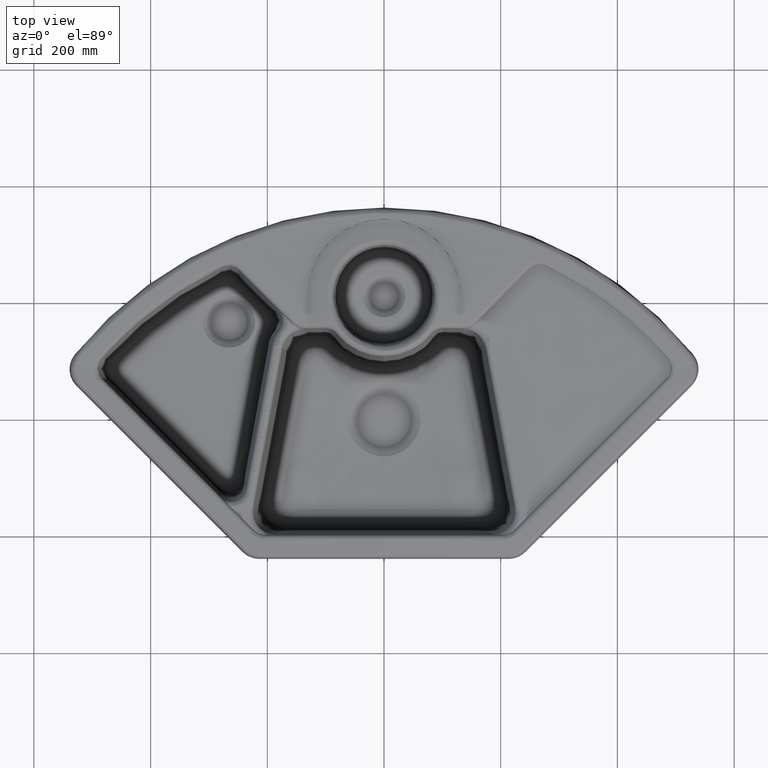
[diagram: clean part render]
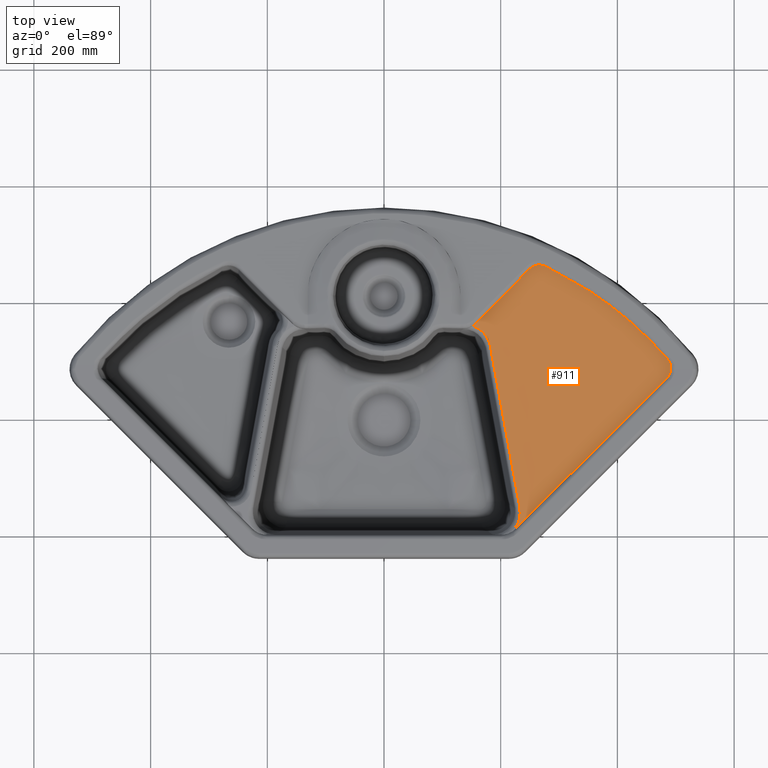
[diagram: same view with one face highlighted and labeled with its STEP entity id]
A machine part, top view. The second image highlights one B-rep face of the part: STEP entity #911.
In plain terms, the highlighted face is a freeform B-spline surface patch.
Its self-contained STEP definition (entity closure, byte-faithful):
#172=B_SPLINE_SURFACE_WITH_KNOTS('',3,1,((#20455,#20456),(#20457,#20458),
(#20459,#20460),(#20461,#20462),(#20463,#20464),(#20465,#20466),(#20467,
#20468),(#20469,#20470),(#20471,#20472),(#20473,#20474),(#20475,#20476),
(#20477,#20478),(#20479,#20480),(#20481,#20482),(#20483,#20484),(#20485,
#20486),(#20487,#20488),(#20489,#20490),(#20491,#20492)),.UNSPECIFIED.,.F.,
 .F.,.F.,(4,1,1,1,1,1,1,1,1,1,1,1,1,1,1,1,4),(2,2),(0.,0.0843379657449076,
0.111162563651349,0.137987161557791,0.164811759464233,0.191636357370675,
0.198342506847285,0.205048656323895,0.218460955277116,0.27211015109,0.379408542715767,
0.486706934341534,0.594005325967301,0.701303717593068,0.808602109218835,
0.862251305031718,1.),(0.,1.),.UNSPECIFIED.);
#911=ADVANCED_FACE('',(#1480),#172,.F.);
#1480=FACE_OUTER_BOUND('',#2008,.T.);
#2008=EDGE_LOOP('',(#3188,#3189,#3190,#3191,#3192,#3193,#3194,#3195,#3196,
#3197,#3198,#3199,#3200,#3201));
#3188=ORIENTED_EDGE('',*,*,#6421,.T.);
#3189=ORIENTED_EDGE('',*,*,#6422,.T.);
#3190=ORIENTED_EDGE('',*,*,#6423,.T.);
#3191=ORIENTED_EDGE('',*,*,#6424,.F.);
#3192=ORIENTED_EDGE('',*,*,#6425,.T.);
#3193=ORIENTED_EDGE('',*,*,#6346,.F.);
#3194=ORIENTED_EDGE('',*,*,#6351,.F.);
#3195=ORIENTED_EDGE('',*,*,#6354,.F.);
#3196=ORIENTED_EDGE('',*,*,#6357,.F.);
#3197=ORIENTED_EDGE('',*,*,#6359,.F.);
#3198=ORIENTED_EDGE('',*,*,#6361,.F.);
#3199=ORIENTED_EDGE('',*,*,#6363,.F.);
#3200=ORIENTED_EDGE('',*,*,#6426,.T.);
#3201=ORIENTED_EDGE('',*,*,#6427,.T.);
#5298=VERTEX_POINT('',#19165);
#5299=VERTEX_POINT('',#19170);
#5303=VERTEX_POINT('',#19199);
#5304=VERTEX_POINT('',#19234);
#5305=VERTEX_POINT('',#19262);
#5306=VERTEX_POINT('',#19283);
#5307=VERTEX_POINT('',#19336);
#5308=VERTEX_POINT('',#19385);
#5343=VERTEX_POINT('',#20409);
#5344=VERTEX_POINT('',#20410);
#5345=VERTEX_POINT('',#20429);
#5346=VERTEX_POINT('',#20436);
#5347=VERTEX_POINT('',#20441);
#5348=VERTEX_POINT('',#20450);
#6346=EDGE_CURVE('',#5298,#5299,#7765,.T.);
#6351=EDGE_CURVE('',#5303,#5298,#7769,.T.);
#6354=EDGE_CURVE('',#5304,#5303,#7772,.T.);
#6357=EDGE_CURVE('',#5305,#5304,#7774,.T.);
#6359=EDGE_CURVE('',#5306,#5305,#7776,.T.);
#6361=EDGE_CURVE('',#5307,#5306,#7778,.T.);
#6363=EDGE_CURVE('',#5308,#5307,#7780,.T.);
#6421=EDGE_CURVE('',#5343,#5344,#7834,.T.);
#6422=EDGE_CURVE('',#5344,#5345,#7835,.T.);
#6423=EDGE_CURVE('',#5345,#5346,#7836,.T.);
#6424=EDGE_CURVE('',#5347,#5346,#7837,.T.);
#6425=EDGE_CURVE('',#5347,#5299,#7838,.T.);
#6426=EDGE_CURVE('',#5308,#5348,#7839,.T.);
#6427=EDGE_CURVE('',#5348,#5343,#7840,.T.);
#7765=B_SPLINE_CURVE_WITH_KNOTS('',3,(#19166,#19167,#19168,#19169),.UNSPECIFIED.,
 .F.,.F.,(4,4),(0.,1.),.UNSPECIFIED.);
#7769=B_SPLINE_CURVE_WITH_KNOTS('',3,(#19200,#19201,#19202,#19203,#19204,
#19205),.UNSPECIFIED.,.F.,.F.,(4,2,4),(0.,0.5,1.),.UNSPECIFIED.);
#7772=B_SPLINE_CURVE_WITH_KNOTS('',3,(#19235,#19236,#19237,#19238),.UNSPECIFIED.,
 .F.,.F.,(4,4),(0.,1.),.UNSPECIFIED.);
#7774=B_SPLINE_CURVE_WITH_KNOTS('',3,(#19263,#19264,#19265,#19266),.UNSPECIFIED.,
 .F.,.F.,(4,4),(0.,1.),.UNSPECIFIED.);
#7776=B_SPLINE_CURVE_WITH_KNOTS('',3,(#19284,#19285,#19286,#19287,#19288,
#19289,#19290,#19291,#19292,#19293),.UNSPECIFIED.,.F.,.F.,(4,2,2,2,4),(0.,
0.25,0.5,0.75,1.),.UNSPECIFIED.);
#7778=B_SPLINE_CURVE_WITH_KNOTS('',3,(#19337,#19338,#19339,#19340,#19341,
#19342,#19343,#19344),.UNSPECIFIED.,.F.,.F.,(4,2,2,4),(0.,0.5,0.75,1.),.UNSPECIFIED.);
#7780=B_SPLINE_CURVE_WITH_KNOTS('',3,(#19387,#19388,#19389,#19390),.UNSPECIFIED.,
 .F.,.F.,(4,4),(0.,1.),.UNSPECIFIED.);
#7834=B_SPLINE_CURVE_WITH_KNOTS('',3,(#20371,#20372,#20373,#20374,#20375,
#20376,#20377,#20378,#20379,#20380,#20381,#20382,#20383,#20384,#20385,#20386,
#20387,#20388,#20389,#20390,#20391,#20392,#20393,#20394,#20395,#20396,#20397,
#20398,#20399,#20400,#20401,#20402,#20403,#20404,#20405,#20406,#20407,#20408),
 .UNSPECIFIED.,.F.,.F.,(4,2,2,2,2,2,2,2,2,2,2,2,2,2,2,2,1,1,2,4),(0.,0.249999999999984,
0.499999999999969,0.531249999999967,0.562499999999965,0.624999999999959,
0.749999999999946,0.781249999999943,0.812499999999939,0.87499999999993,0.878906249999931,
0.882812499999931,0.890624999999932,0.906249999999936,0.937499999999944,
0.941406249999948,0.945312499999952,0.953124999999959,0.968749999999973,
1.),.UNSPECIFIED.);
#7835=B_SPLINE_CURVE_WITH_KNOTS('',3,(#20411,#20412,#20413,#20414,#20415,
#20416,#20417,#20418,#20419,#20420,#20421,#20422,#20423,#20424,#20425,#20426,
#20427,#20428),.UNSPECIFIED.,.F.,.F.,(4,2,2,1,1,1,1,1,1,2,2,4),(0.,0.500000000000004,
0.500976562500004,0.501953125000004,0.503906250000004,0.507812500000004,
0.515625000000004,0.531250000000004,0.562500000000003,0.625000000000003,
0.750000000000002,1.),.UNSPECIFIED.);
#7836=B_SPLINE_CURVE_WITH_KNOTS('',3,(#20430,#20431,#20432,#20433,#20434,
#20435),.UNSPECIFIED.,.F.,.F.,(4,2,4),(0.,0.5,1.),.UNSPECIFIED.);
#7837=B_SPLINE_CURVE_WITH_KNOTS('',3,(#20437,#20438,#20439,#20440),.UNSPECIFIED.,
 .F.,.F.,(4,4),(0.,1.),.UNSPECIFIED.);
#7838=B_SPLINE_CURVE_WITH_KNOTS('',3,(#20442,#20443,#20444,#20445),.UNSPECIFIED.,
 .F.,.F.,(4,4),(0.,1.),.UNSPECIFIED.);
#7839=B_SPLINE_CURVE_WITH_KNOTS('',3,(#20446,#20447,#20448,#20449),.UNSPECIFIED.,
 .F.,.F.,(4,4),(0.,1.),.UNSPECIFIED.);
#7840=B_SPLINE_CURVE_WITH_KNOTS('',3,(#20451,#20452,#20453,#20454),.UNSPECIFIED.,
 .F.,.F.,(4,4),(0.,1.),.UNSPECIFIED.);
#19165=CARTESIAN_POINT('',(483.662048496928,67.1770182385258,-3.70768719974759));
#19166=CARTESIAN_POINT('',(483.662048251032,67.1770179949964,-3.7076872028559));
#19167=CARTESIAN_POINT('',(435.300203226861,19.3664167319738,-4.43169919002742));
#19168=CARTESIAN_POINT('',(369.418566424794,-45.9617528513518,-5.41742687280972));
#19169=CARTESIAN_POINT('',(286.202354894144,-128.992707804294,-6.66377229385875));
#19170=CARTESIAN_POINT('',(286.202328654955,-128.992733984084,-6.66377268684668));
#19199=CARTESIAN_POINT('',(491.296560264635,84.3516708903846,-3.55903628591284));
#19200=CARTESIAN_POINT('',(491.296560269948,84.3516710091879,-3.55903628506826));
#19201=CARTESIAN_POINT('',(491.185657935975,81.8722524667714,-3.57666249327834));
#19202=CARTESIAN_POINT('',(490.700654761542,79.0246534340738,-3.59210786070263));
#19203=CARTESIAN_POINT('',(488.349005447191,73.0701571823819,-3.63649179862702));
#19204=CARTESIAN_POINT('',(486.483007299668,69.9658228531575,-3.66545539731469));
#19205=CARTESIAN_POINT('',(483.662048605296,67.1770183478396,-3.70768720098986));
#19234=CARTESIAN_POINT('',(486.659033673246,100.195195820494,-3.38037267553406));
#19235=CARTESIAN_POINT('',(486.659033497846,100.19519606935,-3.38037267153924));
#19236=CARTESIAN_POINT('',(489.857363659618,95.6568040536952,-3.4538818597989));
#19237=CARTESIAN_POINT('',(491.553874234293,89.971745869247,-3.50861135175512));
#19238=CARTESIAN_POINT('',(491.296560269948,84.3516710091879,-3.55903628506819));
#19262=CARTESIAN_POINT('',(484.939035133482,102.38287331697,-3.33972800117536));
#19263=CARTESIAN_POINT('',(484.938277660277,102.383738328688,-3.33971092099491));
#19264=CARTESIAN_POINT('',(485.54779236654,101.689464697775,-3.35140956101758));
#19265=CARTESIAN_POINT('',(486.121889084399,100.96038142238,-3.36493435612506));
#19266=CARTESIAN_POINT('',(486.659033273958,100.195196391039,-3.38037266225425));
#19283=CARTESIAN_POINT('',(277.452421799216,259.912549006074,0.365415146927722));
#19284=CARTESIAN_POINT('',(277.452422170822,259.91254882932,0.365415143980697));
#19285=CARTESIAN_POINT('',(297.158976049308,250.499419582075,0.144182684609964));
#19286=CARTESIAN_POINT('',(316.442202518618,240.049300963035,-0.101474032406003));
#19287=CARTESIAN_POINT('',(353.787492787295,217.279498375949,-0.636857511165677));
#19288=CARTESIAN_POINT('',(371.829290945504,204.980586399292,-0.926094856416836));
#19289=CARTESIAN_POINT('',(406.644478101589,178.549317276527,-1.54779292901841));
#19290=CARTESIAN_POINT('',(423.424191857759,164.401035824222,-1.88060329313069));
#19291=CARTESIAN_POINT('',(455.342178042167,134.58803315594,-2.58197016570639));
#19292=CARTESIAN_POINT('',(470.531188712614,118.887946888145,-2.95136040094477));
#19293=CARTESIAN_POINT('',(484.938277660277,102.383738328688,-3.33971092099456));
#19336=CARTESIAN_POINT('',(248.216309421765,254.642100971528,-0.289517142007422));
#19337=CARTESIAN_POINT('',(248.216309655965,254.642101214866,-0.289517123771459));
#19338=CARTESIAN_POINT('',(251.843396984405,258.38579978795,-0.0452346938478349));
#19339=CARTESIAN_POINT('',(256.709744151018,261.039407097857,0.147153241332134));
#19340=CARTESIAN_POINT('',(264.591172719788,262.469099275857,0.322359458709459));
#19341=CARTESIAN_POINT('',(267.323163594245,262.52373719484,0.35919038420258));
#19342=CARTESIAN_POINT('',(272.594018876701,261.794242004421,0.390032881038333));
#19343=CARTESIAN_POINT('',(275.090883636015,261.037114677199,0.386275416012494));
#19344=CARTESIAN_POINT('',(277.452421723442,259.912549038521,0.365415141654631));
#19385=CARTESIAN_POINT('',(194.503984916505,199.749101080786,-4.09684412342709));
#19387=CARTESIAN_POINT('',(194.500638262231,199.745741964564,-4.09692269826592));
#19388=CARTESIAN_POINT('',(219.424086797346,224.938991676234,-2.28178897672244));
#19389=CARTESIAN_POINT('',(237.247020595193,243.320148058976,-1.0282930226046));
#19390=CARTESIAN_POINT('',(248.216309372731,254.642100912411,-0.289517158332691));
#20371=CARTESIAN_POINT('',(152.646613315489,158.347880492797,-7.06599557758316));
#20372=CARTESIAN_POINT('',(155.850168126786,157.172975075239,-7.09263997476081));
#20373=CARTESIAN_POINT('',(159.258872526131,155.505854524895,-7.11373380729172));
#20374=CARTESIAN_POINT('',(165.990288669051,150.945737892863,-7.14514355623084));
#20375=CARTESIAN_POINT('',(169.310413184655,148.046743867806,-7.15545906672863));
#20376=CARTESIAN_POINT('',(172.618091204554,144.090188621267,-7.16124417167934));
#20377=CARTESIAN_POINT('',(172.909004663506,143.728547471728,-7.16169677534952));
#20378=CARTESIAN_POINT('',(173.544406645892,142.914571916571,-7.16258439215552));
#20379=CARTESIAN_POINT('',(173.854418327275,142.503476253037,-7.16295909702881));
#20380=CARTESIAN_POINT('',(174.761128250544,141.259226209595,-7.16387698623168));
#20381=CARTESIAN_POINT('',(175.334491913668,140.415119039285,-7.16421394674444));
#20382=CARTESIAN_POINT('',(176.959538948505,137.849494070324,-7.16440855776897));
#20383=CARTESIAN_POINT('',(177.916012157853,136.094480039023,-7.16344996734843));
#20384=CARTESIAN_POINT('',(178.949642511235,133.879953287816,-7.16091965977806));
#20385=CARTESIAN_POINT('',(179.190308199878,133.341836381967,-7.16022015156167));
#20386=CARTESIAN_POINT('',(179.602111907473,132.373959527629,-7.15877440870202));
#20387=CARTESIAN_POINT('',(179.796349759941,131.894712487186,-7.15797165101804));
#20388=CARTESIAN_POINT('',(180.34609340243,130.473210304616,-7.15532476107273));
#20389=CARTESIAN_POINT('',(180.668566347377,129.547257641598,-7.15324203548411));
#20390=CARTESIAN_POINT('',(180.970507210749,128.591699704318,-7.1506937801584));
#20391=CARTESIAN_POINT('',(181.011898742052,128.45929089688,-7.15034205447702));
#20392=CARTESIAN_POINT('',(181.06819660518,128.276059793653,-7.14985916579415));
#20393=CARTESIAN_POINT('',(181.095328261286,128.186560749466,-7.14962479704191));
#20394=CARTESIAN_POINT('',(181.173926955321,127.924466841535,-7.14894286413232));
#20395=CARTESIAN_POINT('',(181.222609988497,127.75827787679,-7.14851647240155));
#20396=CARTESIAN_POINT('',(181.359064357747,127.28565431121,-7.14732159349401));
#20397=CARTESIAN_POINT('',(181.437368770647,127.00519059005,-7.14663738771055));
#20398=CARTESIAN_POINT('',(181.640732606948,126.268935543463,-7.14491928889692));
#20399=CARTESIAN_POINT('',(181.734661786679,125.918359387571,-7.14421967241238));
#20400=CARTESIAN_POINT('',(181.794203735437,125.681641191127,-7.14392948257878));
#20401=CARTESIAN_POINT('',(181.817904588784,125.586890963664,-7.14381936666745));
#20402=CARTESIAN_POINT('',(181.848116464684,125.464713044334,-7.14369334400553));
#20403=CARTESIAN_POINT('',(181.893106906004,125.281202276804,-7.14352172188015));
#20404=CARTESIAN_POINT('',(181.99577705671,124.851293680233,-7.1432430656105));
#20405=CARTESIAN_POINT('',(182.079769701051,124.479824684736,-7.14321270862497));
#20406=CARTESIAN_POINT('',(182.242263317994,123.7328317867,-7.14342918031997));
#20407=CARTESIAN_POINT('',(182.343229428298,123.22941662462,-7.14394307585986));
#20408=CARTESIAN_POINT('',(182.436720039217,122.720439349694,-7.14482440969672));
#20409=CARTESIAN_POINT('',(152.646730221251,158.347800929668,-7.0672564141475));
#20410=CARTESIAN_POINT('',(182.436878745634,122.71957523877,-7.1448259066597));
#20411=CARTESIAN_POINT('',(182.437037452051,122.718711127846,-7.14482740362267));
#20412=CARTESIAN_POINT('',(188.929870817375,87.3609003397661,-7.20612885590279));
#20413=CARTESIAN_POINT('',(197.321456733956,41.5302826148112,-7.25903026215568));
#20414=CARTESIAN_POINT('',(207.626147774808,-14.8849339234214,-7.30406991582157));
#20415=CARTESIAN_POINT('',(207.633386797801,-14.9245653739396,-7.30410152689365));
#20416=CARTESIAN_POINT('',(207.660728746403,-15.074254210359,-7.30422091609888));
#20417=CARTESIAN_POINT('',(207.701757487547,-15.2988737237552,-7.30439998148654));
#20418=CARTESIAN_POINT('',(207.797601937008,-15.8235897394068,-7.30481767175599));
#20419=CARTESIAN_POINT('',(207.989733656242,-16.8754370921856,-7.30565253620586));
#20420=CARTESIAN_POINT('',(208.375767897116,-18.9887934836416,-7.30732019906234));
#20421=CARTESIAN_POINT('',(209.154915783486,-23.2541561588407,-7.31064726596261));
#20422=CARTESIAN_POINT('',(210.741499821387,-31.9395046484548,-7.317268006079));
#20423=CARTESIAN_POINT('',(212.149822543916,-39.6492369419559,-7.322887093235));
#20424=CARTESIAN_POINT('',(215.030750459762,-55.4223992306381,-7.33405706319391));
#20425=CARTESIAN_POINT('',(217.037065255889,-66.4094591113809,-7.34142044520523));
#20426=CARTESIAN_POINT('',(223.311553723147,-100.786173397485,-7.36324118478742));
#20427=CARTESIAN_POINT('',(227.834978198763,-125.591686232308,-7.37969144158248));
#20428=CARTESIAN_POINT('',(232.697339632986,-152.282917934206,-7.39064548886077));
#20429=CARTESIAN_POINT('',(232.697339680403,-152.282918194496,-7.39064548897116));
#20430=CARTESIAN_POINT('',(232.697339692255,-152.282918259568,-7.39064548899432));
#20431=CARTESIAN_POINT('',(234.073507593614,-159.837755521475,-7.39374731153565));
#20432=CARTESIAN_POINT('',(233.622009420506,-167.652407993756,-7.41921256744061));
#20433=CARTESIAN_POINT('',(229.063146781433,-182.355439485451,-7.51139294859209));
#20434=CARTESIAN_POINT('',(225.046347512855,-189.005565557793,-7.57744710528305));
#20435=CARTESIAN_POINT('',(219.623087720578,-194.428974541808,-7.65868402399018));
#20436=CARTESIAN_POINT('',(219.633816211724,-194.421949417344,-7.6588481142045));
#20437=CARTESIAN_POINT('',(225.050681525599,-190.008232466659,-7.57973608111142));
#20438=CARTESIAN_POINT('',(223.40522005856,-191.650030120759,-7.60438501145616));
#20439=CARTESIAN_POINT('',(221.59175790275,-193.129346848583,-7.63183763765395));
#20440=CARTESIAN_POINT('',(219.644355874837,-194.414694753519,-7.66026730649162));
#20441=CARTESIAN_POINT('',(225.05067838313,-190.008229238976,-7.57973662454442));
#20442=CARTESIAN_POINT('',(225.05067465723,-190.008225479905,-7.57973615155395));
#20443=CARTESIAN_POINT('',(245.438596528402,-169.664935513478,-7.27432431381908));
#20444=CARTESIAN_POINT('',(265.822473340566,-149.326446303332,-6.96900426841608));
#20445=CARTESIAN_POINT('',(286.20230294425,-128.992759636566,-6.66377307191866));
#20446=CARTESIAN_POINT('',(194.500635726167,199.745745727405,-4.09692245051636));
#20447=CARTESIAN_POINT('',(181.178228864754,186.279871883363,-5.06712010661236));
#20448=CARTESIAN_POINT('',(168.937697439761,173.906627935611,-5.95929303768468));
#20449=CARTESIAN_POINT('',(157.401635416988,162.247903986749,-6.78019668743094));
#20450=CARTESIAN_POINT('',(157.401630509742,162.247907366684,-6.78010399235591));
#20451=CARTESIAN_POINT('',(157.401638158341,162.2479004326,-6.78019685923208));
#20452=CARTESIAN_POINT('',(155.960572502232,160.791593067318,-6.8827380736502));
#20453=CARTESIAN_POINT('',(154.388722911108,159.497651506204,-6.97738795692975));
#20454=CARTESIAN_POINT('',(152.646632643751,158.347849795889,-7.06599709907558));
#20455=CARTESIAN_POINT('',(261.865038912648,267.553017322649,0.554520693397684));
#20456=CARTESIAN_POINT('',(108.742529165494,141.395107192456,-7.86485855725926));
#20457=CARTESIAN_POINT('',(269.717730618314,264.001722143275,0.472417584653484));
#20458=CARTESIAN_POINT('',(117.945189419928,148.338026758576,-7.86113940090682));
#20459=CARTESIAN_POINT('',(279.952532108939,259.150644796499,0.35928062702718));
#20460=CARTESIAN_POINT('',(133.75449775675,150.769606303047,-7.85601445446947));
#20461=CARTESIAN_POINT('',(292.507766671792,252.853212665933,0.210974489889075));
#20462=CARTESIAN_POINT('',(150.590243221533,143.624360545897,-7.84929639323544));
#20463=CARTESIAN_POINT('',(299.791196459214,249.101817431976,0.122284372739326));
#20464=CARTESIAN_POINT('',(158.881977729915,136.90366557609,-7.84527885458625));
#20465=CARTESIAN_POINT('',(307.038515395626,245.269389359071,0.0314122004442158));
#20466=CARTESIAN_POINT('',(165.01082340425,128.129149914178,-7.84116247188135));
#20467=CARTESIAN_POINT('',(312.448043537341,242.331886222598,-0.0383662709550859));
#20468=CARTESIAN_POINT('',(167.65248940592,120.498986893071,-7.83800160441676));
#20469=CARTESIAN_POINT('',(316.044037946746,240.346064483151,-0.0855569781366687));
#20470=CARTESIAN_POINT('',(168.461722205308,115.20601468062,-7.83586393117788));
#20471=CARTESIAN_POINT('',(318.437020618103,239.014520746549,-0.117196237724574));
#20472=CARTESIAN_POINT('',(169.009090358151,111.680624597414,-7.83443071683212));
#20473=CARTESIAN_POINT('',(324.999959037223,235.321317409396,-0.204940304819244));
#20474=CARTESIAN_POINT('',(170.502249421611,101.984099069331,-7.83045603293138));
#20475=CARTESIAN_POINT('',(340.370178108512,226.344857210422,-0.418112947388173));
#20476=CARTESIAN_POINT('',(174.047628881346,79.0785697284454,-7.82079960944257));
#20477=CARTESIAN_POINT('',(363.468926028225,211.636628814807,-0.767078131749471));
#20478=CARTESIAN_POINT('',(179.521066523999,43.8785784555449,-7.80499197314161));
#20479=CARTESIAN_POINT('',(390.239173983044,192.596384319465,-1.21835100018435));
#20480=CARTESIAN_POINT('',(186.13370723683,1.70194907227908,-7.78454994139634));
#20481=CARTESIAN_POINT('',(415.989385606238,172.21268032677,-1.70104152667503));
#20482=CARTESIAN_POINT('',(192.792554129641,-40.4138232288839,-7.76268473354574));
#20483=CARTESIAN_POINT('',(440.65334977939,150.541226119378,-2.21290768163203));
#20484=CARTESIAN_POINT('',(199.500606499046,-82.4712621397302,-7.73949791040422));
#20485=CARTESIAN_POINT('',(460.240144609818,131.447756298731,-2.66818142235962));
#20486=CARTESIAN_POINT('',(205.134431640106,-117.47229258537,-7.71887464472237));
#20487=CARTESIAN_POINT('',(481.207052994509,109.372517219706,-3.17823100700941));
#20488=CARTESIAN_POINT('',(211.445988695513,-156.409623278586,-7.695770109683));
#20489=CARTESIAN_POINT('',(493.982060176083,94.6233185735799,-3.58642391662458));
#20490=CARTESIAN_POINT('',(215.520195598714,-181.332438186394,-7.6772795400073));
#20491=CARTESIAN_POINT('',(502.856526748337,83.7439099704763,-3.41829017042157));
#20492=CARTESIAN_POINT('',(218.466875624162,-199.25736157835,-7.68489576428696));